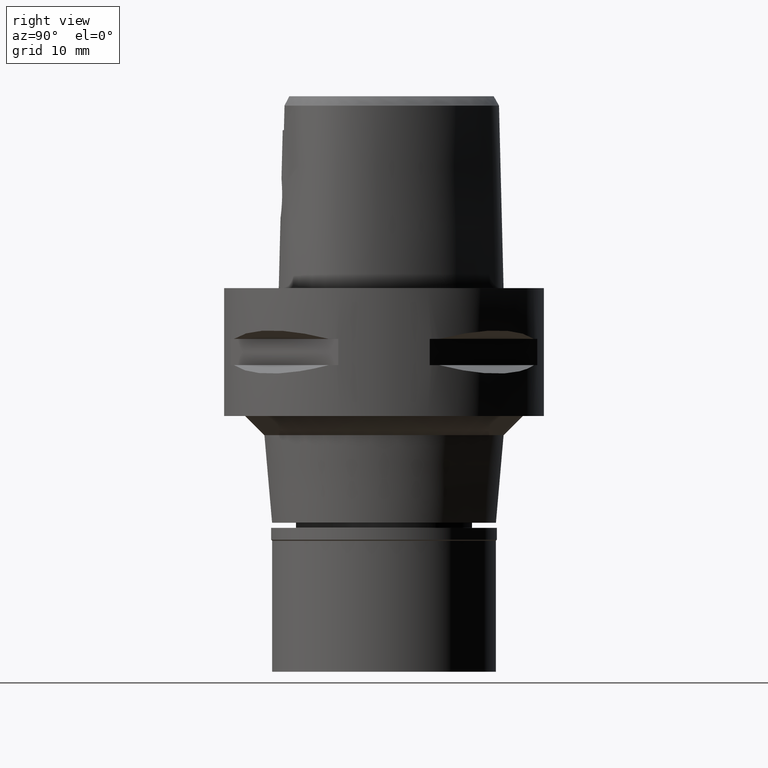
[diagram: clean part render]
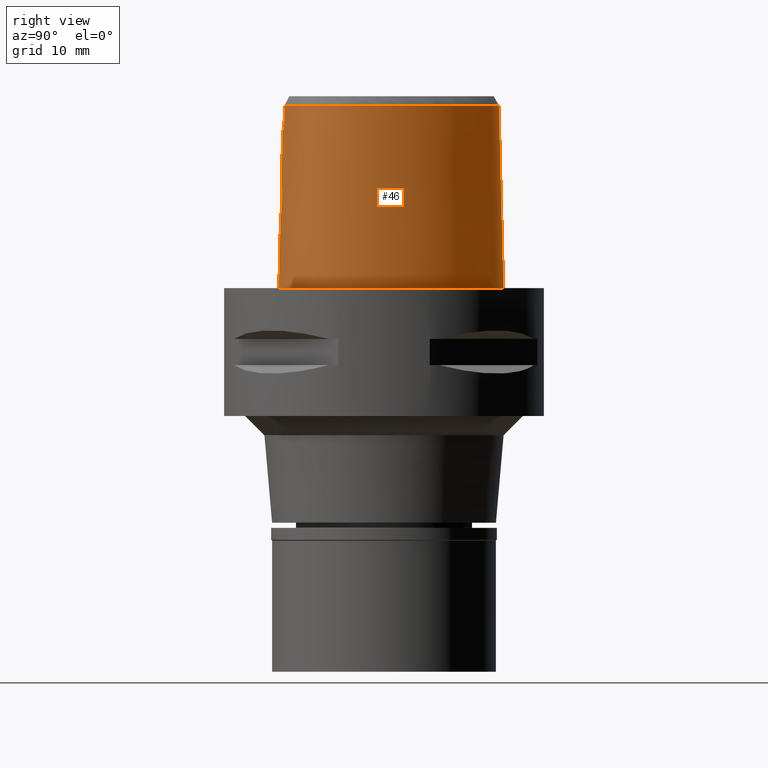
[diagram: same view with one face highlighted and labeled with its STEP entity id]
A machine part, right view. The second image highlights one B-rep face of the part: STEP entity #46.
In plain terms, the highlighted face is a freeform B-spline surface patch.
Its self-contained STEP definition (entity closure, byte-faithful):
#5 = CARTESIAN_POINT ( 'NONE',  ( 0.0000000000000000000, -16.02877864023999877, 17.05000000000000071 ) ) ;
#6 = ORIENTED_EDGE ( 'NONE', *, *, #3692, .T. ) ;
#10 = CARTESIAN_POINT ( 'NONE',  ( 1.205660056383197620, -16.00895870066433346, 16.80162777680003217 ) ) ;
#15 = CARTESIAN_POINT ( 'NONE',  ( 1.062471551688000081E-10, 18.69499999997000117, 1.719365390802999774E-13 ) ) ;
#32 = CARTESIAN_POINT ( 'NONE',  ( 3.043811740428943757, -15.94369047996006117, 13.80020433856451056 ) ) ;
#46 = ADVANCED_FACE ( 'NONE', ( #4563 ), #751, .T. ) ;
#61 = CARTESIAN_POINT ( 'NONE',  ( 2.841104513421474298, -15.93232978956270607, 15.10946569457743927 ) ) ;
#157 = CARTESIAN_POINT ( 'NONE',  ( 16.85489147434099522, -5.354527548487830302, 28.52071728562177100 ) ) ;
#183 = CARTESIAN_POINT ( 'NONE',  ( 14.39249255204000022, 8.309508948602999823, -0.5704146893545999353 ) ) ;
#206 = CARTESIAN_POINT ( 'NONE',  ( 17.47781018527999919, -3.270737581840999830, 9.316773259458001277 ) ) ;
#234 = CARTESIAN_POINT ( 'NONE',  ( 16.22974813341000200, -8.250337656439000966, 19.20396120827000175 ) ) ;
#258 = CARTESIAN_POINT ( 'NONE',  ( 17.57791639697000008, -5.458025465877000215, -0.5704146893545999353 ) ) ;
#277 = CARTESIAN_POINT ( 'NONE',  ( 3.738627708317925347, -15.49270856215684944, 28.52071728562177100 ) ) ;
#283 = CARTESIAN_POINT ( 'NONE',  ( 16.29641056479000127, 3.623925454542999969, 9.316773259458001277 ) ) ;
#311 = CARTESIAN_POINT ( 'NONE',  ( 2.140993609282190846, -16.07751172431456155, 11.82774228836238706 ) ) ;
#326 = LINE ( 'NONE', #3376, #3686 ) ;
#327 = CARTESIAN_POINT ( 'NONE',  ( -0.3829342213739000411, 18.70352949232999862, -0.5704146893545999353 ) ) ;
#328 = CARTESIAN_POINT ( 'NONE',  ( 2.833995780868094894, -15.93260788666783867, 15.12739047023066696 ) ) ;
#335 = CARTESIAN_POINT ( 'NONE',  ( 3.213444788215948034, -15.61774735051721308, 25.97357128944999971 ) ) ;
#349 = CARTESIAN_POINT ( 'NONE',  ( 2.809325157637316828, -15.99329722515104102, 12.81247925863693560 ) ) ;
#376 = CARTESIAN_POINT ( 'NONE',  ( 2.527238172984347830, -15.94795252734346924, 15.71040857169607463 ) ) ;
#390 = CARTESIAN_POINT ( 'NONE',  ( 3.235096591086000117, -15.64751801257999908, 24.70000006080999810 ) ) ;
#401 = CARTESIAN_POINT ( 'NONE',  ( 0.3727785229168248393, -16.02877864023999521, 17.04999999999999716 ) ) ;
#410 = CARTESIAN_POINT ( 'NONE',  ( 0.0000000000000000000, -16.02877864023999877, 17.05000000000000071 ) ) ;
#455 = CARTESIAN_POINT ( 'NONE',  ( 1.298308557004000052, -16.00668750212999925, 19.20396120827000175 ) ) ;
#571 = CARTESIAN_POINT ( 'NONE',  ( 15.05961624676000099, -9.784614141580998847, 29.09114915708000026 ) ) ;
#586 = CARTESIAN_POINT ( 'NONE',  ( 0.6295828025455881827, 17.98202997637472933, 28.52071728562177100 ) ) ;
#592 = CARTESIAN_POINT ( 'NONE',  ( 16.68217932104000312, -8.451606616639999459, -0.5704146893545999353 ) ) ;
#594 = CARTESIAN_POINT ( 'NONE',  ( 0.9192546292175562961, -16.16270200467184281, 11.09138438052321796 ) ) ;
#607 = ORIENTED_EDGE ( 'NONE', *, *, #3441, .T. ) ;
#620 = CARTESIAN_POINT ( 'NONE',  ( 11.69401646411999884, -13.71637917786000038, -0.5704146893545999353 ) ) ;
#645 = CARTESIAN_POINT ( 'NONE',  ( 16.98194843601000414, -3.273961224933000125, 29.09114915708000026 ) ) ;
#646 = CARTESIAN_POINT ( 'NONE',  ( 1.076541679267935647, -16.15575894881600050, 11.14610393787817522 ) ) ;
#667 = CARTESIAN_POINT ( 'NONE',  ( 7.514850663276000375, 15.25369621699999989, 29.09114915708000026 ) ) ;
#668 = CARTESIAN_POINT ( 'NONE',  ( 2.113981747931288790, -16.08023053575308481, 11.80136912899767054 ) ) ;
#692 = CARTESIAN_POINT ( 'NONE',  ( 3.048522094804613225, -15.94078657262286747, 13.89406957476903060 ) ) ;
#698 = CARTESIAN_POINT ( 'NONE',  ( 17.16495051587308041, -7.165908202550113515, 8.060472013698798122E-08 ) ) ;
#713 = CARTESIAN_POINT ( 'NONE',  ( 16.51672824589832800, 3.703437499312346226, 8.060472013698798122E-08 ) ) ;
#731 = CARTESIAN_POINT ( 'NONE',  ( 1.223140967230522458, -16.00835886953706932, 16.79403169540561080 ) ) ;
#751 = B_SPLINE_SURFACE_WITH_KNOTS ( 'NONE', 3, 3, ( 
 ( #3866, #811, #3111, #2719 ),
 ( #4585, #1268, #4226, #909 ),
 ( #1547, #3018, #455, #2456 ),
 ( #4274, #2097, #3229, #2814 ),
 ( #3555, #4344, #1294, #4296 ),
 ( #620, #2430, #2479, #977 ),
 ( #1732, #1360, #4658, #4254 ),
 ( #3135, #3936, #1030, #932 ),
 ( #4637, #2413, #3886, #571 ),
 ( #1752, #1316, #1338, #3906 ),
 ( #592, #1393, #234, #2871 ),
 ( #1709, #3579, #2050, #2773 ),
 ( #258, #3201, #2794, #2074 ),
 ( #3526, #206, #3960, #645 ),
 ( #3181, #2123, #3602, #3504 ),
 ( #4680, #283, #1687, #2845 ),
 ( #183, #2501, #3981, #952 ),
 ( #4323, #4708, #4610, #2029 ),
 ( #1660, #3161, #1007, #667 ),
 ( #1873, #2546, #2148, #2592 ),
 ( #1850, #4779, #1781, #4363 ),
 ( #760, #2960, #1050, #4005 ),
 ( #327, #3699, #2891, #2984 ),
 ( #1460, #1800, #2171, #3299 ) ),
 .UNSPECIFIED., .F., .F., .F.,
 ( 4, 1, 1, 1, 1, 1, 1, 1, 1, 1, 1, 1, 1, 1, 1, 1, 1, 1, 1, 1, 1, 4 ),
 ( 4, 4 ),
 ( -0.01796851319138999953, 0.0000000000000000000, 0.08333333333324000058, 0.1666666666665000129, 0.2083333333331000015, 0.2499999999996999900, 0.2916666666664000096, 0.3124999999996999622, 0.3333333333328999948, 0.3541666666663000340, 0.3749999999995999866, 0.4166666666663000340, 0.4583333333328000192, 0.4999999999994999555, 0.5833333333326999881, 0.6666666666660000518, 0.7499999999991999733, 0.8333333333324000058, 0.9166666666657000695, 0.9583333333322999747, 1.000000000000000000, 1.011711214084999977 ),
 ( 1.380504634219000063E-09, 0.9999999295942000321 ),
 .UNSPECIFIED. ) ;
#760 = CARTESIAN_POINT ( 'NONE',  ( 0.4897519513635999466, 18.72964555592999858, -0.5704146893545999353 ) ) ;
#761 = CARTESIAN_POINT ( 'NONE',  ( 3.026439719954963081, -15.95044932247627756, 13.60966697440818862 ) ) ;
#767 = B_SPLINE_CURVE_WITH_KNOTS ( 'NONE', 3,
 ( #1009, #2150, #4324, #1688, #2480, #594, #2872, #646, #2124, #1339, #4297, #979, #3937, #3603, #2457, #1754, #4345, #1031, #2502, #3982, #668, #3256, #311, #4732, #4255, #933, #2414, #1485, #1893, #1461, #3672, #4751, #1051, #349, #2593, #2568, #1823, #4364, #2962, #4077, #761, #3302, #32, #692, #1151, #2173, #2526, #3275, #4045, #1801, #4006, #3650, #61, #328, #1435, #2190, #2916, #4392, #376, #2941, #1851, #4781, #3740, #4462, #4412, #3700, #1512, #1076, #2985, #3378, #2547, #2621, #4103, #4431, #1098, #731, #10, #2214, #3331, #1122, #2240, #785, #3720, #401, #4025 ),
 .UNSPECIFIED., .F., .F.,
 ( 4, 2, 2, 1, 1, 1, 2, 2, 2, 2, 2, 1, 1, 2, 2, 2, 2, 2, 1, 1, 1, 2, 2, 2, 2, 2, 2, 2, 2, 1, 1, 1, 2, 2, 2, 2, 2, 1, 1, 1, 2, 2, 2, 2, 2, 1, 1, 1, 2, 2, 4 ),
 ( 0.0000000000000000000, 0.06250000000000173472, 0.09375000000000258127, 0.1093750000000030947, 0.1171875000000034972, 0.1210937500000036082, 0.1230468750000037609, 0.1250000000000039135, 0.1875000000000174860, 0.2187500000000242861, 0.2343750000000276723, 0.2421875000000295597, 0.2460937500000303646, 0.2480468750000307809, 0.2500000000000311973, 0.3125000000000457412, 0.3437500000000527911, 0.3593750000000559552, 0.3671875000000575651, 0.3710937500000582312, 0.3730468750000591749, 0.3740234375000590639, 0.3750000000000590084, 0.4375000000000731637, 0.4687500000000802136, 0.4843750000000834888, 0.5000000000000868194, 0.5625000000001010303, 0.5937500000001080247, 0.6093750000001115774, 0.6171875000001135758, 0.6210937500001145750, 0.6230468750001151301, 0.6250000000001155742, 0.6875000000001262324, 0.7187500000001308953, 0.7343750000001332268, 0.7421875000001347811, 0.7460937500001357803, 0.7480468750001358913, 0.7490234375001360023, 0.7500000000001362244, 0.8125000000001250111, 0.8437500000001192380, 0.8593750000001166844, 0.8671875000001157963, 0.8710937500001147971, 0.8730468750001143530, 0.8740234375001137979, 0.8750000000001131317, 1.000000000000000000 ),
 .UNSPECIFIED. ) ;
#785 = CARTESIAN_POINT ( 'NONE',  ( 1.174006529772126495, -16.00999342303450490, 16.81499908877168536 ) ) ;
#789 = CARTESIAN_POINT ( 'NONE',  ( 11.68694516483883739, -13.70394531074277822, 8.060472013698798122E-08 ) ) ;
#811 = CARTESIAN_POINT ( 'NONE',  ( -1.079551361659000008, -16.20136644387000047, 9.316773259458001277 ) ) ;
#849 = VERTEX_POINT ( 'NONE', #410 ) ;
#909 = CARTESIAN_POINT ( 'NONE',  ( -0.7074880712108999603, -15.72098112484000154, 29.09114915708000026 ) ) ;
#932 = CARTESIAN_POINT ( 'NONE',  ( 14.25868488110000065, -10.78027801620000048, 29.09114915708000026 ) ) ;
#933 = CARTESIAN_POINT ( 'NONE',  ( 2.520134627835524110, -16.03555388123990610, 12.27057898515683121 ) ) ;
#952 = CARTESIAN_POINT ( 'NONE',  ( 13.74710208485999985, 7.936918621252999628, 29.09114915708000026 ) ) ;
#977 = CARTESIAN_POINT ( 'NONE',  ( 11.32630895345999988, -13.06981817912000032, 29.09114915708000026 ) ) ;
#979 = CARTESIAN_POINT ( 'NONE',  ( 1.156159398729772692, -16.15179475289025390, 11.17762171550781680 ) ) ;
#1007 = CARTESIAN_POINT ( 'NONE',  ( 7.668807709350000223, 15.44980313998000021, 19.20396120827000175 ) ) ;
#1009 = CARTESIAN_POINT ( 'NONE',  ( -1.081027968787999969E-14, -16.18126839358999902, 10.94999999999999929 ) ) ;
#1025 = CARTESIAN_POINT ( 'NONE',  ( 3.168920890822999770, -15.55911073834000113, 28.52071374672999582 ) ) ;
#1030 = CARTESIAN_POINT ( 'NONE',  ( 14.43869627973000114, -10.95090975763000074, 19.20396120827000175 ) ) ;
#1031 = CARTESIAN_POINT ( 'NONE',  ( 1.978196576727016209, -16.09322655025719584, 11.67779944827690031 ) ) ;
#1050 = CARTESIAN_POINT ( 'NONE',  ( 0.4640361010179999690, 18.23425882172000101, 19.20396120827000175 ) ) ;
#1051 = CARTESIAN_POINT ( 'NONE',  ( 2.805465924458163229, -15.99392283370483447, 12.80337208493990175 ) ) ;
#1076 = CARTESIAN_POINT ( 'NONE',  ( 2.175462687950508567, -15.96676677279047851, 16.13772689056817100 ) ) ;
#1094 = CARTESIAN_POINT ( 'NONE',  ( 6.782947203050825700E-08, -15.90128720080494951, 22.15000025259020688 ) ) ;
#1098 = CARTESIAN_POINT ( 'NONE',  ( 1.260641960718074550, -16.00704454262749721, 16.77741419479918150 ) ) ;
#1102 = CARTESIAN_POINT ( 'NONE',  ( 4.728927205949522872, 17.73480468564913437, 8.060472013698798122E-08 ) ) ;
#1111 = CARTESIAN_POINT ( 'NONE',  ( 2.030224832988000123E-07, -15.83752876601000281, 24.70000006102999990 ) ) ;
#1122 = CARTESIAN_POINT ( 'NONE',  ( 1.175512421035935340, -16.00994515832586274, 16.81436886813472142 ) ) ;
#1151 = CARTESIAN_POINT ( 'NONE',  ( 3.049759903297173391, -15.93952064890530629, 13.93862028804423403 ) ) ;
#1259 = EDGE_LOOP ( 'NONE', ( #1284, #3374, #1945, #3896, #6, #2733, #1702, #607 ) ) ;
#1266 = VERTEX_POINT ( 'NONE', #3628 ) ;
#1268 = CARTESIAN_POINT ( 'NONE',  ( -0.7201291709424999521, -16.21519148143999800, 9.316773259458001277 ) ) ;
#1284 = ORIENTED_EDGE ( 'NONE', *, *, #4507, .F. ) ;
#1289 = CARTESIAN_POINT ( 'NONE',  ( 15.58740368722559566, -8.999391713747048271, 28.52071728562177100 ) ) ;
#1294 = CARTESIAN_POINT ( 'NONE',  ( 8.782085138636000821, -14.58525467707000089, 19.20396120827000175 ) ) ;
#1316 = CARTESIAN_POINT ( 'NONE',  ( 16.00394172730999998, -9.239880064015000727, 9.316773259458001277 ) ) ;
#1338 = CARTESIAN_POINT ( 'NONE',  ( 15.78948630686999977, -9.116064168937999312, 19.20396120827000175 ) ) ;
#1339 = CARTESIAN_POINT ( 'NONE',  ( 1.136669049853098024, -16.15278784308938143, 11.16971284617465088 ) ) ;
#1360 = CARTESIAN_POINT ( 'NONE',  ( 13.36241663110000033, -12.29868532253000168, 9.316773259458001277 ) ) ;
#1372 = VERTEX_POINT ( 'NONE', #2815 ) ;
#1393 = CARTESIAN_POINT ( 'NONE',  ( 16.45596372723000300, -8.350972136539001056, 9.316773259458001277 ) ) ;
#1404 = EDGE_CURVE ( 'NONE', #1266, #849, #767, .T. ) ;
#1420 = CARTESIAN_POINT ( 'NONE',  ( 15.64884224092913456, -10.21298828006826653, 8.060472013698798122E-08 ) ) ;
#1435 = CARTESIAN_POINT ( 'NONE',  ( 2.829216307945507491, -15.93279722872300397, 15.13933157649573324 ) ) ;
#1439 = CARTESIAN_POINT ( 'NONE',  ( 17.56373942732609095, -5.455996093462406549, 8.060472013698798122E-08 ) ) ;
#1460 = CARTESIAN_POINT ( 'NONE',  ( -0.5743166383012000553, 18.69191973809000018, -0.5704146893545999353 ) ) ;
#1461 = CARTESIAN_POINT ( 'NONE',  ( 2.771786462081279989, -15.99936567286700750, 12.72700942949271763 ) ) ;
#1479 = CARTESIAN_POINT ( 'NONE',  ( 11.33338046474446870, -13.08225241901467584, 28.52071728562177100 ) ) ;
#1485 = CARTESIAN_POINT ( 'NONE',  ( 2.711834087032927165, -16.00872930835745223, 12.60232708821245140 ) ) ;
#1512 = CARTESIAN_POINT ( 'NONE',  ( 2.180731943209413881, -15.96648883151600629, 16.13235136813547044 ) ) ;
#1547 = CARTESIAN_POINT ( 'NONE',  ( 1.321318946922000137, -16.50155084596999799, -0.5704146893545999353 ) ) ;
#1617 = VERTEX_POINT ( 'NONE', #1947 ) ;
#1636 = CARTESIAN_POINT ( 'NONE',  ( 16.47905536661112080, -6.962316254603026167, 28.52071728562177100 ) ) ;
#1660 = CARTESIAN_POINT ( 'NONE',  ( 7.976721801497999031, 15.84201698594000085, -0.5704146893545999353 ) ) ;
#1687 = CARTESIAN_POINT ( 'NONE',  ( 16.06260404404000042, 3.539545324669999715, 19.20396120827000175 ) ) ;
#1688 = CARTESIAN_POINT ( 'NONE',  ( 0.6757755934734660519, -16.17136631950032211, 11.02415178540401186 ) ) ;
#1702 = ORIENTED_EDGE ( 'NONE', *, *, #4526, .T. ) ;
#1705 = CARTESIAN_POINT ( 'NONE',  ( 7.523733068098368726, 15.26501041873871323, 28.52071728562177100 ) ) ;
#1709 = CARTESIAN_POINT ( 'NONE',  ( 17.17866842910000003, -7.169980044548999842, -0.5704146893545999353 ) ) ;
#1726 = CARTESIAN_POINT ( 'NONE',  ( 10.91764517732377193, 11.98972036053177881, 28.52071728562177100 ) ) ;
#1732 = CARTESIAN_POINT ( 'NONE',  ( 13.51574691256999827, -12.49390941264999988, -0.5704146893545999353 ) ) ;
#1752 = CARTESIAN_POINT ( 'NONE',  ( 16.21839714773999930, -9.363695959091000276, -0.5704146893545999353 ) ) ;
#1754 = CARTESIAN_POINT ( 'NONE',  ( 1.804264978149598742, -16.10845115993978993, 11.53841612038461051 ) ) ;
#1781 = CARTESIAN_POINT ( 'NONE',  ( 1.941729200853999915, 18.07741835450000067, 19.20396120827000175 ) ) ;
#1786 = CARTESIAN_POINT ( 'NONE',  ( -3.510844822442999662E-14, -16.45500000000000185, 1.731207769731999880E-13 ) ) ;
#1793 = B_SPLINE_CURVE_WITH_KNOTS ( 'NONE', 3,
 ( #4409, #1094, #3695, #5 ),
 .UNSPECIFIED., .F., .F.,
 ( 4, 4 ),
 ( 0.0000000000000000000, 1.000000000000000000 ),
 .UNSPECIFIED. ) ;
#1800 = CARTESIAN_POINT ( 'NONE',  ( -0.5593289288418999972, 18.44521839699000054, 9.316773259458001277 ) ) ;
#1801 = CARTESIAN_POINT ( 'NONE',  ( 2.911280664803439500, -15.93005754642941696, 14.91077316039441492 ) ) ;
#1823 = CARTESIAN_POINT ( 'NONE',  ( 2.811712154284399023, -15.99291076359493680, 12.81814297429554905 ) ) ;
#1829 = CARTESIAN_POINT ( 'NONE',  ( 7.967839662969371517, 15.83070312340009700, 8.060472013698798122E-08 ) ) ;
#1849 = EDGE_CURVE ( 'NONE', #4669, #2582, #2782, .T. ) ;
#1850 = CARTESIAN_POINT ( 'NONE',  ( 2.043508293017999744, 18.56419796967000124, -0.5704146893545999353 ) ) ;
#1851 = CARTESIAN_POINT ( 'NONE',  ( 2.365077987679770288, -15.95668180986848128, 15.92664024514257193 ) ) ;
#1873 = CARTESIAN_POINT ( 'NONE',  ( 4.735056264549000637, 17.74784407913000095, -0.5704146893545999353 ) ) ;
#1880 = CARTESIAN_POINT ( 'NONE',  ( 3.168920890822999770, -15.55911073834000113, 28.52071374672999582 ) ) ;
#1893 = CARTESIAN_POINT ( 'NONE',  ( 2.758376358923188221, -16.00150414919207975, 12.69803291765180653 ) ) ;
#1945 = ORIENTED_EDGE ( 'NONE', *, *, #1849, .F. ) ;
#1947 = CARTESIAN_POINT ( 'NONE',  ( -2.689763426294999878E-11, 17.98202997909999823, 28.52071728569000086 ) ) ;
#2029 = CARTESIAN_POINT ( 'NONE',  ( 10.90668504253000037, 11.98047073355999892, 29.09114915708000026 ) ) ;
#2050 = CARTESIAN_POINT ( 'NONE',  ( 16.70311417111000196, -7.028822875200999576, 19.20396120827000175 ) ) ;
#2074 = CARTESIAN_POINT ( 'NONE',  ( 16.84071407965999612, -5.352498115230999609, 29.09114915708000026 ) ) ;
#2097 = CARTESIAN_POINT ( 'NONE',  ( 5.009809422101999310, -15.92506881772000327, 9.316773259458001277 ) ) ;
#2123 = CARTESIAN_POINT ( 'NONE',  ( 17.26695537442000017, -0.2694874692022000695, 9.316773259458001277 ) ) ;
#2124 = CARTESIAN_POINT ( 'NONE',  ( 1.118652917008894576, -16.15369440504827381, 11.16249964062432198 ) ) ;
#2148 = CARTESIAN_POINT ( 'NONE',  ( 4.522582263123999802, 17.29581183566000036, 19.20396120827000175 ) ) ;
#2150 = CARTESIAN_POINT ( 'NONE',  ( 0.1894708041407132948, -16.18126839359000257, 10.94999999999999751 ) ) ;
#2171 = CARTESIAN_POINT ( 'NONE',  ( -0.5443412193826999701, 18.19851705588000357, 19.20396120827000175 ) ) ;
#2173 = CARTESIAN_POINT ( 'NONE',  ( 3.050813397908036961, -15.93336864761109339, 14.17856259386583773 ) ) ;
#2188 = DIRECTION ( 'NONE',  ( 4.666895486234898396E-12, 0.02499051285761943672, -0.9996876883642775713 ) ) ;
#2190 = CARTESIAN_POINT ( 'NONE',  ( 2.826229060796141113, -15.93291730135941009, 15.14671417004774057 ) ) ;
#2194 = CARTESIAN_POINT ( 'NONE',  ( 14.38008119514790550, 8.302343748987569327, 8.060472013698798122E-08 ) ) ;
#2214 = CARTESIAN_POINT ( 'NONE',  ( 1.187527735112615890, -16.00955817207296406, 16.80932873459357069 ) ) ;
#2219 = CARTESIAN_POINT ( 'NONE',  ( 2.040572357252240732, 18.55015624801769292, 8.060472013698798122E-08 ) ) ;
#2238 = DIRECTION ( 'NONE',  ( 0.0000000000000000000, -0.02499051295401919642, -0.9996876883618678322 ) ) ;
#2240 = CARTESIAN_POINT ( 'NONE',  ( 1.173193796387157040, -16.01001885286361670, 16.81533619556428150 ) ) ;
#2293 = EDGE_CURVE ( 'NONE', #1617, #2582, #2437, .T. ) ;
#2373 = CARTESIAN_POINT ( 'NONE',  ( 3.168920890822999770, -15.55911073834000113, 28.52071374672999582 ) ) ;
#2383 = CARTESIAN_POINT ( 'NONE',  ( 16.01658383235431771, -8.155509186612549755, 28.52071728562177100 ) ) ;
#2413 = CARTESIAN_POINT ( 'NONE',  ( 15.46013587788999999, -10.07579656331999907, 9.316773259458001277 ) ) ;
#2414 = CARTESIAN_POINT ( 'NONE',  ( 2.672435103440279569, -16.01462572138791174, 12.52675205238583267 ) ) ;
#2430 = CARTESIAN_POINT ( 'NONE',  ( 11.57144729390000037, -13.50085884495000066, 9.316773259458001277 ) ) ;
#2437 = B_SPLINE_CURVE_WITH_KNOTS ( 'NONE', 3,
 ( #3155, #586, #4633, #4269, #1705, #1726, #2450, #4674, #4318, #3480, #157, #1636, #2383, #1289, #2908, #3271, #3977, #1479, #3224, #2866, #277, #1025 ),
 .UNSPECIFIED., .F., .F.,
 ( 4, 1, 1, 1, 1, 1, 1, 1, 1, 1, 1, 1, 1, 1, 1, 1, 1, 1, 1, 4 ),
 ( 0.0000000000000000000, 0.04404152929333251393, 0.08808305858550220802, 0.1761661171699475670, 0.2642491757542871911, 0.3523322343386266486, 0.4404152929230720215, 0.5284983515074116456, 0.5725398807996870953, 0.6165814100917511587, 0.6606229393840267194, 0.6826437040301115422, 0.7046644686763020582, 0.7266852333222812987, 0.7487059979683662325, 0.7927475272606416823, 0.8367890565528115498, 0.8808305858449813064, 0.9689136444293843242, 1.000000000000000000 ),
 .UNSPECIFIED. ) ;
#2450 = CARTESIAN_POINT ( 'NONE',  ( 13.75951381385467620, 7.944084035686890033, 28.52071728562177100 ) ) ;
#2456 = CARTESIAN_POINT ( 'NONE',  ( 1.286803362044000032, -15.75925583020999809, 29.09114915708000026 ) ) ;
#2457 = CARTESIAN_POINT ( 'NONE',  ( 1.717947567609820148, -16.11534879136080178, 11.47787378061844876 ) ) ;
#2479 = CARTESIAN_POINT ( 'NONE',  ( 11.44887812368000191, -13.28533851202999827, 19.20396120827000175 ) ) ;
#2480 = CARTESIAN_POINT ( 'NONE',  ( 0.7733865806548115840, -16.16827192134729785, 11.04793821581054480 ) ) ;
#2501 = CARTESIAN_POINT ( 'NONE',  ( 14.17736239630999862, 8.185312172818999699, 9.316773259458001277 ) ) ;
#2502 = CARTESIAN_POINT ( 'NONE',  ( 2.043464316199654629, -16.08710042879773638, 11.73558001619221791 ) ) ;
#2526 = CARTESIAN_POINT ( 'NONE',  ( 3.033494840291901529, -15.93046636693585683, 14.37417087587611597 ) ) ;
#2534 = CARTESIAN_POINT ( 'NONE',  ( 3.235096591086000117, -15.64751801257999908, 24.70000006080999810 ) ) ;
#2546 = CARTESIAN_POINT ( 'NONE',  ( 4.628819263837000264, 17.52182795739999932, 9.316773259458001277 ) ) ;
#2547 = CARTESIAN_POINT ( 'NONE',  ( 1.721399371683796753, -15.98873273080709012, 16.52589475087429705 ) ) ;
#2552 = CARTESIAN_POINT ( 'NONE',  ( 8.946741555494178044, -15.03902343559270349, 8.060472013698798122E-08 ) ) ;
#2568 = CARTESIAN_POINT ( 'NONE',  ( 2.811975403063839085, -15.99286828561347029, 12.81877344445201139 ) ) ;
#2582 = VERTEX_POINT ( 'NONE', #2373 ) ;
#2592 = CARTESIAN_POINT ( 'NONE',  ( 4.416345262412000316, 17.06979571391999784, 29.09114915708000026 ) ) ;
#2593 = CARTESIAN_POINT ( 'NONE',  ( 2.810922757712464914, -15.99303859622507318, 12.81627068417565951 ) ) ;
#2621 = CARTESIAN_POINT ( 'NONE',  ( 1.460099985768065212, -15.99949394188807794, 16.67970577748603489 ) ) ;
#2719 = CARTESIAN_POINT ( 'NONE',  ( -1.060560759647000140, -15.70738089371999990, 29.09114915708000026 ) ) ;
#2733 = ORIENTED_EDGE ( 'NONE', *, *, #1404, .F. ) ;
#2773 = CARTESIAN_POINT ( 'NONE',  ( 16.46533704211000071, -6.958244290527000331, 29.09114915708000026 ) ) ;
#2782 = B_SPLINE_CURVE_WITH_KNOTS ( 'NONE', 3,
 ( #2534, #335, #4418, #1880 ),
 .UNSPECIFIED., .F., .F.,
 ( 4, 4 ),
 ( 0.0000000000000000000, 1.000000000000000000 ),
 .UNSPECIFIED. ) ;
#2791 = VERTEX_POINT ( 'NONE', #4444 ) ;
#2794 = CARTESIAN_POINT ( 'NONE',  ( 17.08644818543000099, -5.387673898780000137, 19.20396120827000175 ) ) ;
#2814 = CARTESIAN_POINT ( 'NONE',  ( 4.922186778652999806, -15.43572508391999953, 29.09114915708000026 ) ) ;
#2815 = CARTESIAN_POINT ( 'NONE',  ( 2.030224832988000123E-07, -15.83752876601000281, 24.70000006102999990 ) ) ;
#2845 = CARTESIAN_POINT ( 'NONE',  ( 15.82879752328000045, 3.455165194797000350, 29.09114915708000026 ) ) ;
#2866 = CARTESIAN_POINT ( 'NONE',  ( 5.902447799195265965, -15.16907841529634560, 28.52071728562177100 ) ) ;
#2871 = CARTESIAN_POINT ( 'NONE',  ( 16.00353253958999744, -8.149703176337999011, 29.09114915708000026 ) ) ;
#2872 = CARTESIAN_POINT ( 'NONE',  ( 0.9920502692199637540, -16.15968496647265695, 11.11504782250278289 ) ) ;
#2891 = CARTESIAN_POINT ( 'NONE',  ( -0.3630721082021999835, 18.20950140030000242, 19.20396120827000175 ) ) ;
#2896 = CARTESIAN_POINT ( 'NONE',  ( 16.20602471788992460, -9.356552733365674612, 8.060472013698798122E-08 ) ) ;
#2908 = CARTESIAN_POINT ( 'NONE',  ( 15.07117004567277441, -9.793013887526345940, 28.52071728562177100 ) ) ;
#2916 = CARTESIAN_POINT ( 'NONE',  ( 2.765089457534360751, -15.93539841943947977, 15.29670751281648755 ) ) ;
#2920 = CARTESIAN_POINT ( 'NONE',  ( 17.49754712108232724, -0.2285937503537123217, 8.060472013698798122E-08 ) ) ;
#2941 = CARTESIAN_POINT ( 'NONE',  ( 2.467155030309465147, -15.95119901749617419, 15.79660572871747348 ) ) ;
#2954 = B_SPLINE_CURVE_WITH_KNOTS ( 'NONE', 3,
 ( #1786, #4107, #2990, #2552, #789, #4028, #3632, #1420, #2896, #4368, #698, #1439, #4416, #2920, #713, #2194, #3676, #1829, #1102, #2219, #3704, #15 ),
 .UNSPECIFIED., .F., .F.,
 ( 4, 1, 1, 1, 1, 1, 1, 1, 1, 1, 1, 1, 1, 1, 1, 1, 1, 1, 1, 4 ),
 ( 0.0000000000000000000, 0.08333333333324000058, 0.1666666666665000129, 0.2083333333331000015, 0.2499999999996999900, 0.2916666666664000096, 0.3124999999996999622, 0.3333333333328999948, 0.3541666666663000340, 0.3749999999995999866, 0.4166666666663000340, 0.4583333333328000192, 0.4999999999994999555, 0.5833333333326999881, 0.6666666666660000518, 0.7499999999991999733, 0.8333333333324000058, 0.9166666666657000695, 0.9583333333322999747, 1.000000000000000000 ),
 .UNSPECIFIED. ) ;
#2960 = CARTESIAN_POINT ( 'NONE',  ( 0.4768940261908000133, 18.48195218881999935, 9.316773259458001277 ) ) ;
#2962 = CARTESIAN_POINT ( 'NONE',  ( 2.955070551067350060, -15.96804284111654937, 13.21907077985236612 ) ) ;
#2984 = CARTESIAN_POINT ( 'NONE',  ( -0.3531410516162999946, 17.96248735428000032, 29.09114915708000026 ) ) ;
#2985 = CARTESIAN_POINT ( 'NONE',  ( 2.173744786773113447, -15.96685737239005398, 16.13947645908073270 ) ) ;
#2990 = CARTESIAN_POINT ( 'NONE',  ( 5.051093167216465396, -16.15562499800590857, 8.060472013698798122E-08 ) ) ;
#3004 = B_SPLINE_CURVE_WITH_KNOTS ( 'NONE', 3,
 ( #390, #4422, #4057, #1111 ),
 .UNSPECIFIED., .F., .F.,
 ( 4, 4 ),
 ( 0.0000000000000000000, 1.000000000000000000 ),
 .UNSPECIFIED. ) ;
#3018 = CARTESIAN_POINT ( 'NONE',  ( 1.309813751962999984, -16.25411917405000040, 9.316773259458001277 ) ) ;
#3111 = CARTESIAN_POINT ( 'NONE',  ( -1.070056060653000074, -15.95437366878999974, 19.20396120827000175 ) ) ;
#3135 = CARTESIAN_POINT ( 'NONE',  ( 14.79871907699000211, -11.29217324048999949, -0.5704146893545999353 ) ) ;
#3155 = CARTESIAN_POINT ( 'NONE',  ( -2.689763426294999878E-11, 17.98202997909999823, 28.52071728569000086 ) ) ;
#3161 = CARTESIAN_POINT ( 'NONE',  ( 7.822764755424000960, 15.64591006296000053, 9.316773259458001277 ) ) ;
#3181 = CARTESIAN_POINT ( 'NONE',  ( 17.51166498523999948, -0.2260900529059000075, -0.5704146893545999353 ) ) ;
#3201 = CARTESIAN_POINT ( 'NONE',  ( 17.33218229119999876, -5.422849682327999687, 9.316773259458001277 ) ) ;
#3224 = CARTESIAN_POINT ( 'NONE',  ( 8.702202469522491768, -14.36510984286658932, 28.52071728562177100 ) ) ;
#3229 = CARTESIAN_POINT ( 'NONE',  ( 4.965998100376999069, -15.68039695082000229, 19.20396120827000175 ) ) ;
#3256 = CARTESIAN_POINT ( 'NONE',  ( 2.130194203767655114, -16.07860222669588524, 11.81715097750876176 ) ) ;
#3271 = CARTESIAN_POINT ( 'NONE',  ( 14.26907046692440062, -10.79012245165506023, 28.52071728562177100 ) ) ;
#3275 = CARTESIAN_POINT ( 'NONE',  ( 2.977747846588777669, -15.92914192646318838, 14.66739527998314152 ) ) ;
#3299 = CARTESIAN_POINT ( 'NONE',  ( -0.5293535099234000230, 17.95181571477999682, 29.09114915708000026 ) ) ;
#3302 = CARTESIAN_POINT ( 'NONE',  ( 3.040347753435931999, -15.94527829474892044, 13.75284650412289977 ) ) ;
#3331 = CARTESIAN_POINT ( 'NONE',  ( 1.179031261441153999, -16.00983282488399340, 16.81289828917672580 ) ) ;
#3374 = ORIENTED_EDGE ( 'NONE', *, *, #2293, .T. ) ;
#3376 = CARTESIAN_POINT ( 'NONE',  ( -2.689763426294999878E-11, 17.98202997909999823, 28.52071728569000086 ) ) ;
#3378 = CARTESIAN_POINT ( 'NONE',  ( 1.941231415080881151, -15.97911241077857447, 16.37492664292257771 ) ) ;
#3441 = EDGE_CURVE ( 'NONE', #2791, #4339, #2954, .T. ) ;
#3480 = CARTESIAN_POINT ( 'NONE',  ( 16.99625257117414634, -3.273868232427375791, 28.52071728562177100 ) ) ;
#3504 = CARTESIAN_POINT ( 'NONE',  ( 16.77753615277999799, -0.3562823017948000270, 29.09114915708000026 ) ) ;
#3526 = CARTESIAN_POINT ( 'NONE',  ( 17.72574105992000071, -3.269125760296000216, -0.5704146893545999353 ) ) ;
#3555 = CARTESIAN_POINT ( 'NONE',  ( 8.951632340865000259, -15.05250171750999932, -0.5704146893545999353 ) ) ;
#3579 = CARTESIAN_POINT ( 'NONE',  ( 16.94089130009999877, -7.099401459874999709, 9.316773259458001277 ) ) ;
#3602 = CARTESIAN_POINT ( 'NONE',  ( 17.02224576359999730, -0.3128848854985000205, 19.20396120827000175 ) ) ;
#3603 = CARTESIAN_POINT ( 'NONE',  ( 1.465060433627272563, -16.13413588983642555, 11.31747209296652201 ) ) ;
#3628 = CARTESIAN_POINT ( 'NONE',  ( -1.081027968787999969E-14, -16.18126839358999902, 10.94999999999999929 ) ) ;
#3632 = CARTESIAN_POINT ( 'NONE',  ( 14.78833380252457985, -11.28232910017027990, 8.060472013698798122E-08 ) ) ;
#3650 = CARTESIAN_POINT ( 'NONE',  ( 2.857268494071314446, -15.93172230816072776, 15.06755241575725535 ) ) ;
#3672 = CARTESIAN_POINT ( 'NONE',  ( 2.789190042337814646, -15.99656282347447522, 12.76585243843454265 ) ) ;
#3676 = CARTESIAN_POINT ( 'NONE',  ( 11.46563507868070353, 12.45218749870124952, 8.060472013698798122E-08 ) ) ;
#3686 = VECTOR ( 'NONE', #2188, 1000.000000000000227 ) ;
#3692 = EDGE_CURVE ( 'NONE', #1372, #849, #1793, .T. ) ;
#3695 = CARTESIAN_POINT ( 'NONE',  ( 6.798473026282698769E-08, -15.96503292052393164, 19.60000012629512867 ) ) ;
#3699 = CARTESIAN_POINT ( 'NONE',  ( -0.3730031647879999968, 18.45651544631000363, 9.316773259458001277 ) ) ;
#3700 = CARTESIAN_POINT ( 'NONE',  ( 2.188610074216028600, -15.96607311698152998, 16.12428449958529697 ) ) ;
#3704 = CARTESIAN_POINT ( 'NONE',  ( 0.6801907857368680865, 18.69499999798534517, 8.060472013698798122E-08 ) ) ;
#3720 = CARTESIAN_POINT ( 'NONE',  ( 0.7753407809088188607, -16.02254934541538489, 16.98075088978153246 ) ) ;
#3740 = CARTESIAN_POINT ( 'NONE',  ( 2.271881382016068152, -15.96165950827425206, 16.03516303691089817 ) ) ;
#3813 = CARTESIAN_POINT ( 'NONE',  ( 1.062471551688000081E-10, 18.69499999997000117, 1.719365390802999774E-13 ) ) ;
#3866 = CARTESIAN_POINT ( 'NONE',  ( -1.089046662664999943, -16.44835921894000208, -0.5704146893545999353 ) ) ;
#3886 = CARTESIAN_POINT ( 'NONE',  ( 15.25987606233000093, -9.930205352450000689, 19.20396120827000175 ) ) ;
#3896 = ORIENTED_EDGE ( 'NONE', *, *, #4184, .T. ) ;
#3906 = CARTESIAN_POINT ( 'NONE',  ( 15.57503088644000044, -8.992248273861997987, 29.09114915708000026 ) ) ;
#3936 = CARTESIAN_POINT ( 'NONE',  ( 14.61870767835999985, -11.12154149905999923, 9.316773259458001277 ) ) ;
#3937 = CARTESIAN_POINT ( 'NONE',  ( 1.304837879370301712, -16.14411956110363278, 11.23880391535335299 ) ) ;
#3960 = CARTESIAN_POINT ( 'NONE',  ( 17.22987931065000211, -3.272349403386999978, 19.20396120827000175 ) ) ;
#3977 = CARTESIAN_POINT ( 'NONE',  ( 13.06460231238679270, -11.91950040982951364, 28.52071728562177100 ) ) ;
#3981 = CARTESIAN_POINT ( 'NONE',  ( 13.96223224059000145, 8.061115397035999663, 19.20396120827000175 ) ) ;
#3982 = CARTESIAN_POINT ( 'NONE',  ( 2.076069337571305518, -16.08397781194964082, 11.76527653126129280 ) ) ;
#4005 = CARTESIAN_POINT ( 'NONE',  ( 0.4511781758451999802, 17.98656545461999912, 29.09114915708000026 ) ) ;
#4006 = CARTESIAN_POINT ( 'NONE',  ( 2.887906680852645014, -15.93067299273005766, 14.98339460070663698 ) ) ;
#4022 = CARTESIAN_POINT ( 'NONE',  ( -1.081027968787999969E-14, -16.18126839358999902, 10.94999999999999929 ) ) ;
#4025 = CARTESIAN_POINT ( 'NONE',  ( 0.0000000000000000000, -16.02877864023999877, 17.05000000000000071 ) ) ;
#4028 = CARTESIAN_POINT ( 'NONE',  ( 13.50690093354285715, -12.48264648278229139, 8.060472013698798122E-08 ) ) ;
#4043 = LINE ( 'NONE', #4022, #4299 ) ;
#4045 = CARTESIAN_POINT ( 'NONE',  ( 2.954214387979582579, -15.92920527639566153, 14.76509397178852367 ) ) ;
#4057 = CARTESIAN_POINT ( 'NONE',  ( 1.084489111483896373, -15.83754148654284499, 24.70000016056467373 ) ) ;
#4077 = CARTESIAN_POINT ( 'NONE',  ( 3.012477187259582134, -15.95444011877556534, 13.51273282646264917 ) ) ;
#4103 = CARTESIAN_POINT ( 'NONE',  ( 1.383881162846924306, -16.00246946742144871, 16.71887733590106606 ) ) ;
#4107 = CARTESIAN_POINT ( 'NONE',  ( 1.683697722405236075, -16.45499999798570556, 8.060472013698798122E-08 ) ) ;
#4184 = EDGE_CURVE ( 'NONE', #4669, #1372, #3004, .T. ) ;
#4226 = CARTESIAN_POINT ( 'NONE',  ( -0.7138086210767000672, -15.96808630313999799, 19.20396120827000175 ) ) ;
#4254 = CARTESIAN_POINT ( 'NONE',  ( 13.05575606815000000, -11.90823714228999997, 29.09114915708000026 ) ) ;
#4255 = CARTESIAN_POINT ( 'NONE',  ( 2.373080589667748708, -16.05382454882208521, 12.05873884124476447 ) ) ;
#4269 = CARTESIAN_POINT ( 'NONE',  ( 4.422474504765642855, 17.08283549833305770, 28.52071728562177100 ) ) ;
#4274 = CARTESIAN_POINT ( 'NONE',  ( 5.053620743826999551, -16.16974068462999981, -0.5704146893545999353 ) ) ;
#4296 = CARTESIAN_POINT ( 'NONE',  ( 8.697311537521999369, -14.35163115686000168, 29.09114915708000026 ) ) ;
#4297 = CARTESIAN_POINT ( 'NONE',  ( 1.148672490777464361, -16.15217863345300842, 11.17456314688615748 ) ) ;
#4299 = VECTOR ( 'NONE', #2238, 1000.000000000000114 ) ;
#4302 = CARTESIAN_POINT ( 'NONE',  ( 3.235096591086000117, -15.64751801257999908, 24.70000006080999810 ) ) ;
#4318 = CARTESIAN_POINT ( 'NONE',  ( 16.79165444020273057, -0.3537785292841005291, 28.52071728562177100 ) ) ;
#4323 = CARTESIAN_POINT ( 'NONE',  ( 11.47659488488999990, 12.46143684836999910, -0.5704146893545999353 ) ) ;
#4324 = CARTESIAN_POINT ( 'NONE',  ( 0.3835065831126409086, -16.17879287506758246, 10.96770652856564254 ) ) ;
#4339 = VERTEX_POINT ( 'NONE', #3813 ) ;
#4344 = CARTESIAN_POINT ( 'NONE',  ( 8.866858739749998719, -14.81887819729000100, 9.316773259458001277 ) ) ;
#4345 = CARTESIAN_POINT ( 'NONE',  ( 1.934609288166570185, -16.09715181491455382, 11.64142972776312490 ) ) ;
#4363 = CARTESIAN_POINT ( 'NONE',  ( 1.890839654772000111, 17.83402854691999906, 29.09114915708000026 ) ) ;
#4364 = CARTESIAN_POINT ( 'NONE',  ( 2.896037486601367394, -15.97928510060139118, 13.01937794676715932 ) ) ;
#4368 = CARTESIAN_POINT ( 'NONE',  ( 16.66912841955289792, -8.445800780429143728, 8.060472013698798122E-08 ) ) ;
#4392 = CARTESIAN_POINT ( 'NONE',  ( 2.686623959674551365, -15.93943917117186793, 15.45748851103029864 ) ) ;
#4409 = CARTESIAN_POINT ( 'NONE',  ( 2.030224832988000123E-07, -15.83752876601000281, 24.70000006102999990 ) ) ;
#4412 = CARTESIAN_POINT ( 'NONE',  ( 2.206812598789866797, -15.96511149804170948, 16.10543793688900394 ) ) ;
#4416 = CARTESIAN_POINT ( 'NONE',  ( 17.71143735359261129, -3.269218750013660912, 8.060472013698798122E-08 ) ) ;
#4418 = CARTESIAN_POINT ( 'NONE',  ( 3.191384142201736829, -15.58827398948734633, 27.24714251809000132 ) ) ;
#4422 = CARTESIAN_POINT ( 'NONE',  ( 2.169052010914307882, -15.77399788591698027, 24.70000016056467373 ) ) ;
#4431 = CARTESIAN_POINT ( 'NONE',  ( 1.289031784416734050, -16.00601543848103958, 16.76443978391701251 ) ) ;
#4444 = CARTESIAN_POINT ( 'NONE',  ( -3.510844822442999662E-14, -16.45500000000000185, 1.731207769731999880E-13 ) ) ;
#4462 = CARTESIAN_POINT ( 'NONE',  ( 2.242502445778653097, -15.96322178672459913, 16.06765903809025886 ) ) ;
#4507 = EDGE_CURVE ( 'NONE', #1617, #4339, #326, .T. ) ;
#4526 = EDGE_CURVE ( 'NONE', #1266, #2791, #4043, .T. ) ;
#4563 = FACE_OUTER_BOUND ( 'NONE', #1259, .T. ) ;
#4585 = CARTESIAN_POINT ( 'NONE',  ( -0.7264497208083000590, -16.46229665974999889, -0.5704146893545999353 ) ) ;
#4610 = CARTESIAN_POINT ( 'NONE',  ( 11.09665498999000022, 12.14079277183000016, 19.20396120827000175 ) ) ;
#4633 = CARTESIAN_POINT ( 'NONE',  ( 1.893775678556710140, 17.84807068955539933, 28.52071728562177100 ) ) ;
#4637 = CARTESIAN_POINT ( 'NONE',  ( 15.66039569345999816, -10.22138777419000100, -0.5704146893545999353 ) ) ;
#4658 = CARTESIAN_POINT ( 'NONE',  ( 13.20908634961999972, -12.10346123240999816, 19.20396120827000175 ) ) ;
#4669 = VERTEX_POINT ( 'NONE', #4302 ) ;
#4674 = CARTESIAN_POINT ( 'NONE',  ( 15.84228676732862873, 3.460033425849807998, 28.52071728562177100 ) ) ;
#4680 = CARTESIAN_POINT ( 'NONE',  ( 16.53021708553999858, 3.708305584416000222, -0.5704146893545999353 ) ) ;
#4708 = CARTESIAN_POINT ( 'NONE',  ( 11.28662493743999917, 12.30111481009999963, 9.316773259458001277 ) ) ;
#4732 = CARTESIAN_POINT ( 'NONE',  ( 2.144863515134752152, -16.07711969081207570, 11.83155453780599764 ) ) ;
#4751 = CARTESIAN_POINT ( 'NONE',  ( 2.797212589489200596, -15.99526261505198477, 12.78411970175135792 ) ) ;
#4779 = CARTESIAN_POINT ( 'NONE',  ( 1.992618746935999940, 18.32080816208999963, 9.316773259458001277 ) ) ;
#4781 = CARTESIAN_POINT ( 'NONE',  ( 2.329061756988494380, -15.95861158351646480, 15.97010297577870475 ) ) ;